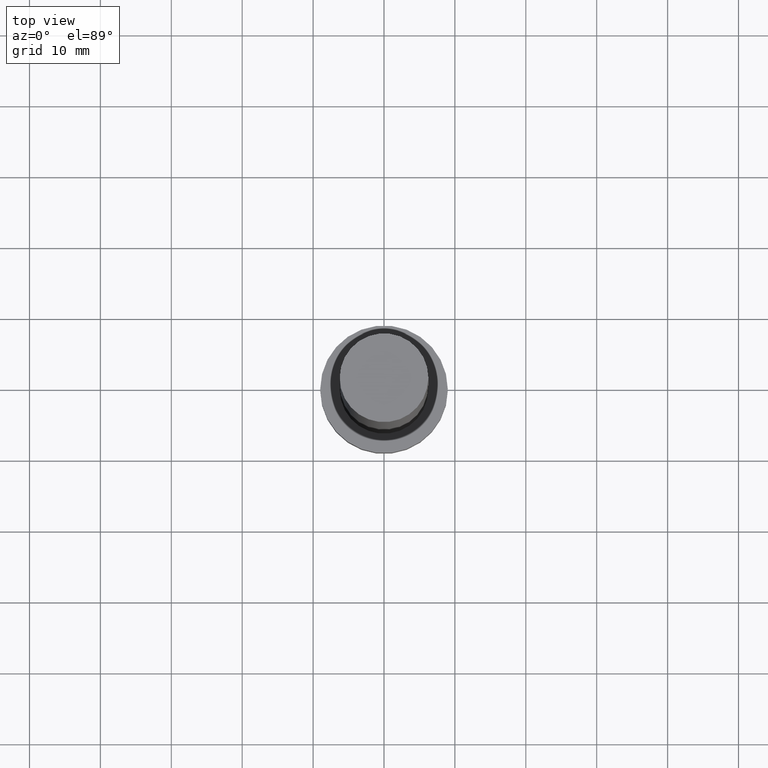
[diagram: clean part render]
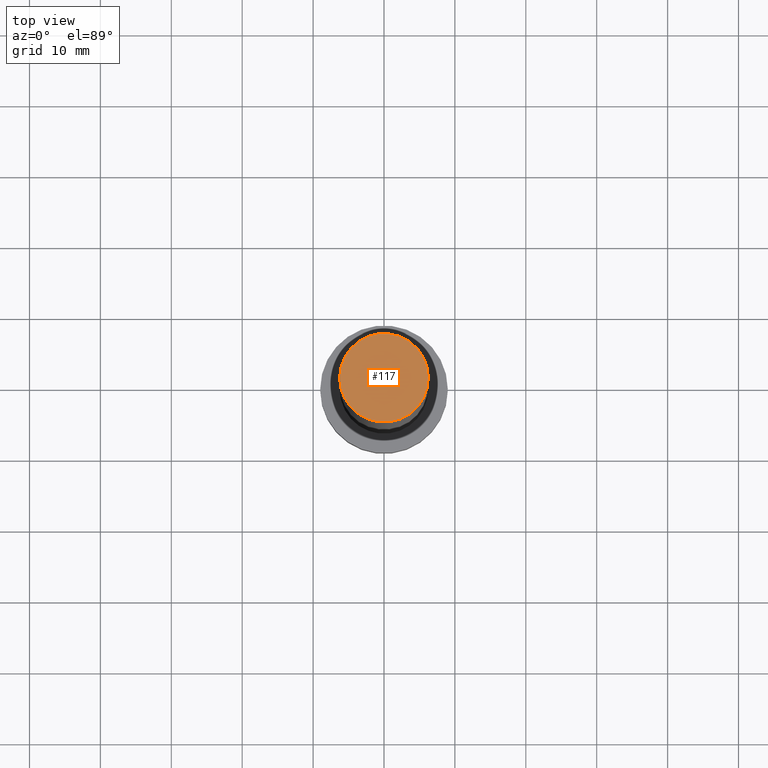
[diagram: same view with one face highlighted and labeled with its STEP entity id]
A machine part, top view. The second image highlights one B-rep face of the part: STEP entity #117.
In plain terms, the highlighted planar face has unit normal (0, 0, 1).
Its self-contained STEP definition (entity closure, byte-faithful):
#14 = AXIS2_PLACEMENT_3D ( 'NONE', #16, #95, #148 ) ;
#16 = CARTESIAN_POINT ( 'NONE',  ( 0.000000000000000000, 0.000000000000000000, 100.0000000000000000 ) ) ;
#21 = PLANE ( 'NONE',  #14 ) ;
#33 = VERTEX_POINT ( 'NONE', #53 ) ;
#34 = CARTESIAN_POINT ( 'NONE',  ( 6.250000000000000000, 7.654042494670955634E-16, 100.0000000000000000 ) ) ;
#49 = EDGE_LOOP ( 'NONE', ( #250, #141 ) ) ;
#53 = CARTESIAN_POINT ( 'NONE',  ( -6.250000000000000000, 0.000000000000000000, 100.0000000000000000 ) ) ;
#55 = VERTEX_POINT ( 'NONE', #34 ) ;
#87 = AXIS2_PLACEMENT_3D ( 'NONE', #244, #186, #224 ) ;
#95 = DIRECTION ( 'NONE',  ( 0.000000000000000000, 0.000000000000000000, 1.000000000000000000 ) ) ;
#102 = DIRECTION ( 'NONE',  ( 1.000000000000000000, 0.000000000000000000, 0.000000000000000000 ) ) ;
#104 = AXIS2_PLACEMENT_3D ( 'NONE', #155, #193, #102 ) ;
#117 = ADVANCED_FACE ( 'NONE', ( #126 ), #21, .T. ) ;
#126 = FACE_OUTER_BOUND ( 'NONE', #49, .T. ) ;
#139 = EDGE_CURVE ( 'NONE', #55, #33, #229, .T. ) ;
#140 = CIRCLE ( 'NONE', #104, 6.250000000000000000 ) ;
#141 = ORIENTED_EDGE ( 'NONE', *, *, #139, .T. ) ;
#148 = DIRECTION ( 'NONE',  ( 1.000000000000000000, 0.000000000000000000, -0.000000000000000000 ) ) ;
#155 = CARTESIAN_POINT ( 'NONE',  ( 0.000000000000000000, 0.000000000000000000, 100.0000000000000000 ) ) ;
#186 = DIRECTION ( 'NONE',  ( 0.000000000000000000, 0.000000000000000000, 1.000000000000000000 ) ) ;
#193 = DIRECTION ( 'NONE',  ( 0.000000000000000000, 0.000000000000000000, 1.000000000000000000 ) ) ;
#224 = DIRECTION ( 'NONE',  ( 1.000000000000000000, 0.000000000000000000, 0.000000000000000000 ) ) ;
#229 = CIRCLE ( 'NONE', #87, 6.250000000000000000 ) ;
#244 = CARTESIAN_POINT ( 'NONE',  ( 0.000000000000000000, 0.000000000000000000, 100.0000000000000000 ) ) ;
#245 = EDGE_CURVE ( 'NONE', #33, #55, #140, .T. ) ;
#250 = ORIENTED_EDGE ( 'NONE', *, *, #245, .T. ) ;